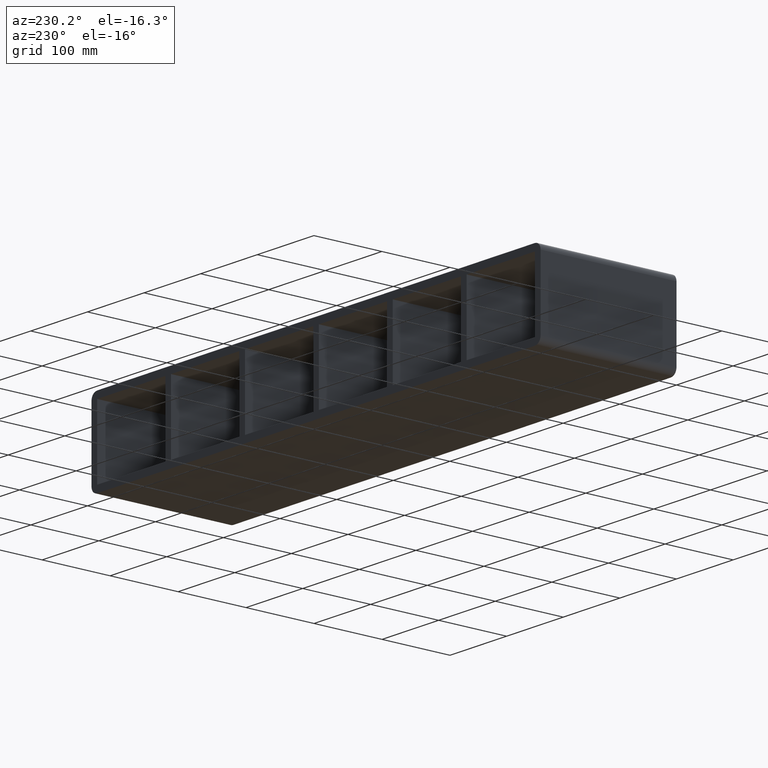
[diagram: clean part render]
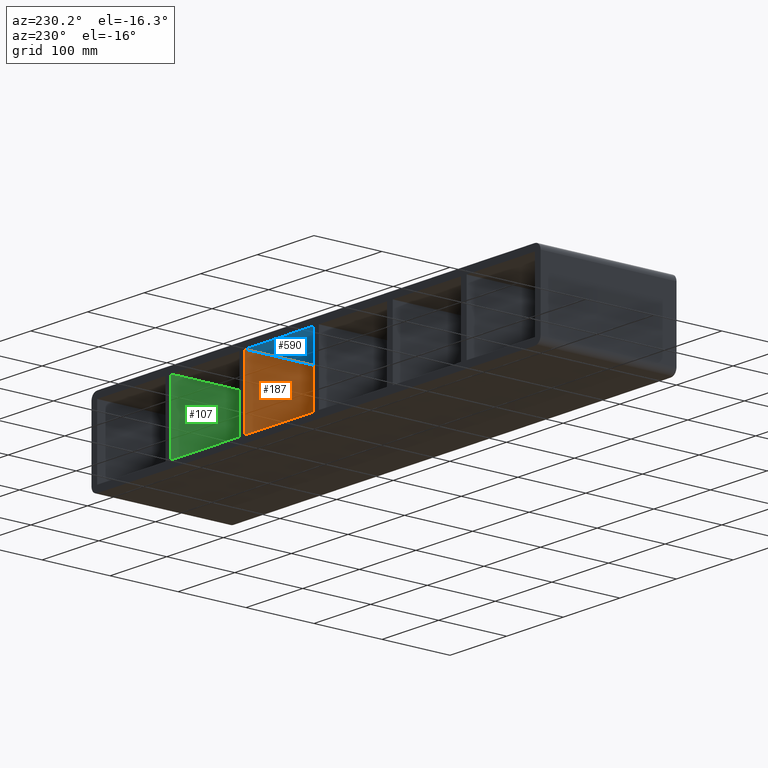
[diagram: same view with three faces highlighted in distinct colors, each labeled with its STEP entity id]
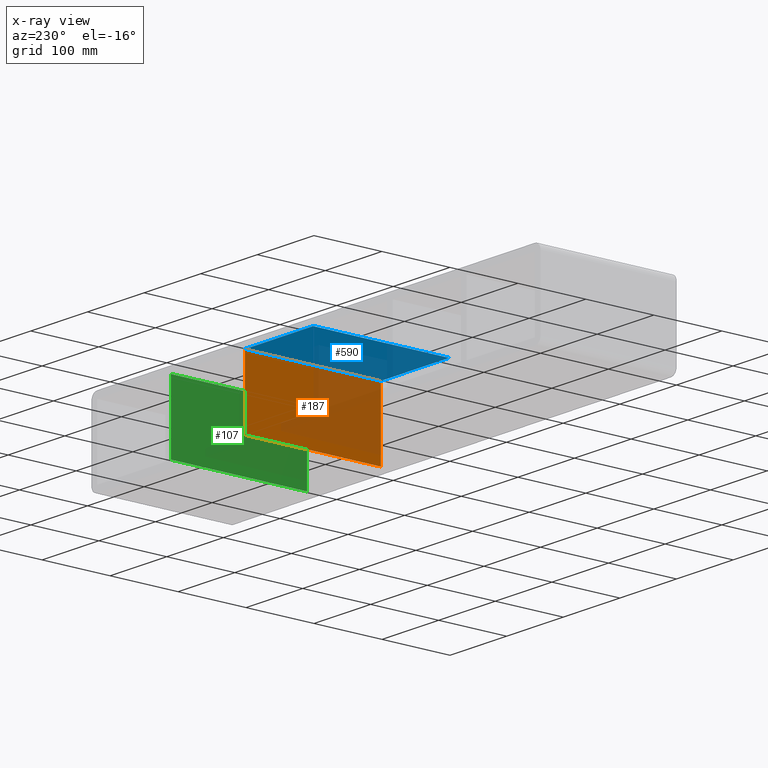
[diagram: x-ray of the same camera — body ghosted, the three highlighted faces saturated]
A machine part, auxiliary view with three faces highlighted in distinct colors.
The next image is the same camera in x-ray (body ghosted, the three faces saturated) — at least one of them is partly hidden behind the body in this view.
Their STEP definitions:

[orange] entity #187 — the highlighted planar face has unit normal (-1, 0, 0).
#148=CARTESIAN_POINT('',(125.49999999999883,-3.0,-50.500000000000007));
#149=DIRECTION('',(-1.0,0.0,0.0));
#150=DIRECTION('',(0.0,0.0,1.0));
#151=AXIS2_PLACEMENT_3D('',#148,#149,#150);
#152=PLANE('',#151);
#153=CARTESIAN_POINT('',(125.49999999999883,-3.0,-50.500000000000007));
#154=VERTEX_POINT('',#153);
#155=CARTESIAN_POINT('',(125.49999999999876,-3.0,50.500000000000007));
#156=VERTEX_POINT('',#155);
#157=CARTESIAN_POINT('',(125.49999999999883,-3.0,-50.500000000000007));
#158=DIRECTION('',(0.0,0.0,1.0));
#159=VECTOR('',#158,101.00000000000001);
#160=LINE('',#157,#159);
#161=EDGE_CURVE('',#154,#156,#160,.T.);
#162=ORIENTED_EDGE('',*,*,#161,.T.);
#163=CARTESIAN_POINT('',(125.49999999999876,197.0,50.500000000000007));
#164=VERTEX_POINT('',#163);
#165=CARTESIAN_POINT('',(125.49999999999876,196.99999999999997,50.5));
#166=DIRECTION('',(0.0,-1.0,0.0));
#167=VECTOR('',#166,199.99999999999997);
#168=LINE('',#165,#167);
#169=EDGE_CURVE('',#164,#156,#168,.T.);
#170=ORIENTED_EDGE('',*,*,#169,.F.);
#171=CARTESIAN_POINT('',(125.49999999999883,197.0,-50.500000000000007));
#172=VERTEX_POINT('',#171);
#173=CARTESIAN_POINT('',(125.49999999999883,197.0,-50.500000000000007));
#174=DIRECTION('',(0.0,0.0,1.0));
#175=VECTOR('',#174,101.00000000000001);
#176=LINE('',#173,#175);
#177=EDGE_CURVE('',#172,#164,#176,.T.);
#178=ORIENTED_EDGE('',*,*,#177,.F.);
#179=CARTESIAN_POINT('',(125.49999999999883,-3.0,-50.500000000000007));
#180=DIRECTION('',(0.0,1.0,0.0));
#181=VECTOR('',#180,199.99999999999997);
#182=LINE('',#179,#181);
#183=EDGE_CURVE('',#154,#172,#182,.T.);
#184=ORIENTED_EDGE('',*,*,#183,.F.);
#185=EDGE_LOOP('',(#162,#170,#178,#184));
#186=FACE_OUTER_BOUND('',#185,.T.);
#187=ADVANCED_FACE('',(#186),#152,.T.);

[blue] entity #590 — the highlighted planar face has unit normal (0, 0, 1).
#155=CARTESIAN_POINT('',(125.49999999999876,-3.0,50.500000000000007));
#156=VERTEX_POINT('',#155);
#163=CARTESIAN_POINT('',(125.49999999999876,197.0,50.500000000000007));
#164=VERTEX_POINT('',#163);
#165=CARTESIAN_POINT('',(125.49999999999876,196.99999999999997,50.5));
#166=DIRECTION('',(0.0,-1.0,0.0));
#167=VECTOR('',#166,199.99999999999997);
#168=LINE('',#165,#167);
#169=EDGE_CURVE('',#164,#156,#168,.T.);
#273=CARTESIAN_POINT('',(5.000000000014566,-3.0,50.500000000000007));
#274=VERTEX_POINT('',#273);
#291=CARTESIAN_POINT('',(5.000000000014566,197.0,50.500000000000007));
#292=VERTEX_POINT('',#291);
#299=CARTESIAN_POINT('',(5.000000000014566,-3.0,50.5));
#300=DIRECTION('',(0.0,1.0,0.0));
#301=VECTOR('',#300,199.99999999999997);
#302=LINE('',#299,#301);
#303=EDGE_CURVE('',#274,#292,#302,.T.);
#569=CARTESIAN_POINT('',(-386.5,0.0,50.5));
#570=DIRECTION('',(0.0,0.0,1.0));
#571=DIRECTION('',(1.0,0.0,0.0));
#572=AXIS2_PLACEMENT_3D('',#569,#570,#571);
#573=PLANE('',#572);
#574=ORIENTED_EDGE('',*,*,#169,.T.);
#575=CARTESIAN_POINT('',(5.000000000014552,-3.0,50.5));
#576=DIRECTION('',(1.0,0.0,0.0));
#577=VECTOR('',#576,120.4999999999842);
#578=LINE('',#575,#577);
#579=EDGE_CURVE('',#274,#156,#578,.T.);
#580=ORIENTED_EDGE('',*,*,#579,.F.);
#581=ORIENTED_EDGE('',*,*,#303,.T.);
#582=CARTESIAN_POINT('',(125.49999999999875,197.0,50.5));
#583=DIRECTION('',(-1.0,0.0,0.0));
#584=VECTOR('',#583,120.4999999999842);
#585=LINE('',#582,#584);
#586=EDGE_CURVE('',#164,#292,#585,.T.);
#587=ORIENTED_EDGE('',*,*,#586,.F.);
#588=EDGE_LOOP('',(#574,#580,#581,#587));
#589=FACE_OUTER_BOUND('',#588,.T.);
#590=ADVANCED_FACE('',(#589),#573,.F.);

[green] entity #107 — the highlighted planar face has unit normal (-1, 0, 0).
#68=CARTESIAN_POINT('',(255.99999999999883,-3.0,-50.500000000000007));
#69=DIRECTION('',(-1.0,0.0,0.0));
#70=DIRECTION('',(0.0,0.0,1.0));
#71=AXIS2_PLACEMENT_3D('',#68,#69,#70);
#72=PLANE('',#71);
#73=CARTESIAN_POINT('',(255.99999999999883,-3.0,-50.500000000000007));
#74=VERTEX_POINT('',#73);
#75=CARTESIAN_POINT('',(255.99999999999878,-3.0,50.500000000000007));
#76=VERTEX_POINT('',#75);
#77=CARTESIAN_POINT('',(255.99999999999883,-3.0,-50.500000000000007));
#78=DIRECTION('',(0.0,0.0,1.0));
#79=VECTOR('',#78,101.00000000000001);
#80=LINE('',#77,#79);
#81=EDGE_CURVE('',#74,#76,#80,.T.);
#82=ORIENTED_EDGE('',*,*,#81,.T.);
#83=CARTESIAN_POINT('',(255.99999999999878,197.0,50.500000000000007));
#84=VERTEX_POINT('',#83);
#85=CARTESIAN_POINT('',(255.99999999999883,196.99999999999997,50.5));
#86=DIRECTION('',(0.0,-1.0,0.0));
#87=VECTOR('',#86,199.99999999999997);
#88=LINE('',#85,#87);
#89=EDGE_CURVE('',#84,#76,#88,.T.);
#90=ORIENTED_EDGE('',*,*,#89,.F.);
#91=CARTESIAN_POINT('',(255.99999999999883,197.0,-50.500000000000007));
#92=VERTEX_POINT('',#91);
#93=CARTESIAN_POINT('',(255.99999999999883,197.0,-50.500000000000007));
#94=DIRECTION('',(0.0,0.0,1.0));
#95=VECTOR('',#94,101.00000000000001);
#96=LINE('',#93,#95);
#97=EDGE_CURVE('',#92,#84,#96,.T.);
#98=ORIENTED_EDGE('',*,*,#97,.F.);
#99=CARTESIAN_POINT('',(255.99999999999881,-3.0,-50.500000000000007));
#100=DIRECTION('',(0.0,1.0,0.0));
#101=VECTOR('',#100,199.99999999999997);
#102=LINE('',#99,#101);
#103=EDGE_CURVE('',#74,#92,#102,.T.);
#104=ORIENTED_EDGE('',*,*,#103,.F.);
#105=EDGE_LOOP('',(#82,#90,#98,#104));
#106=FACE_OUTER_BOUND('',#105,.T.);
#107=ADVANCED_FACE('',(#106),#72,.T.);